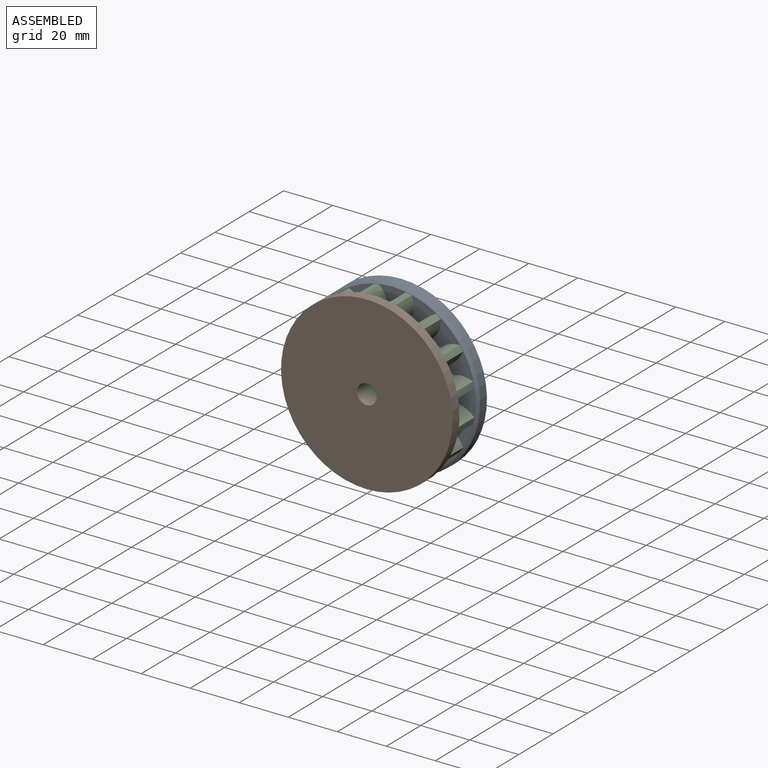
[diagram: assembled view]
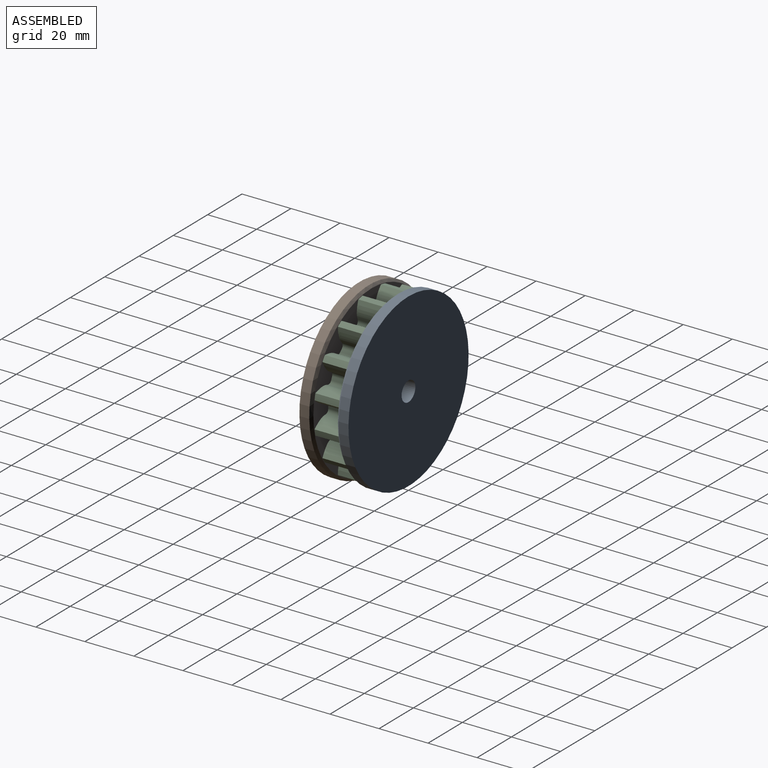
[diagram: assembled view, second angle]
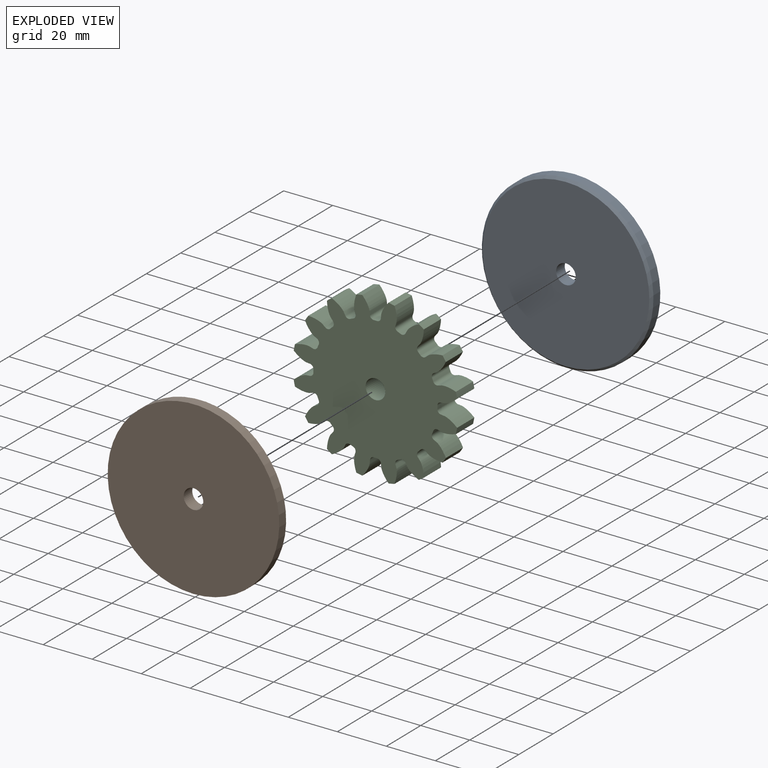
[diagram: exploded view]
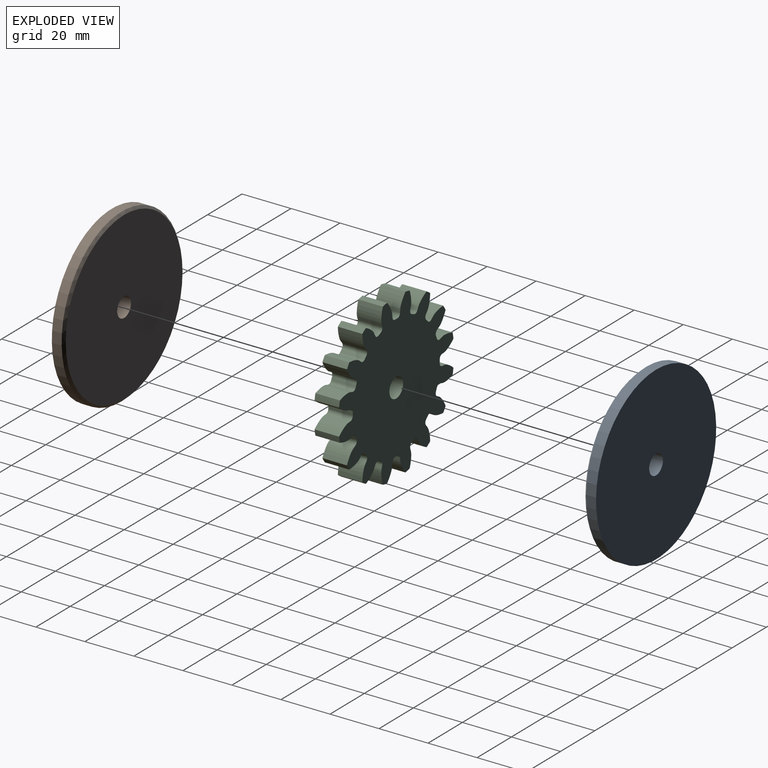
[diagram: exploded view, second angle]
ASSEMBLY  parts=3 mates=2
PART A: 5 faces, bbox 70x5x70 mm
  f0: cylinder r=4mm len=8mm, axis (0,1,0), area 125.7mm2, adj f2,f3
  f1: cylinder r=35mm len=70mm, axis (0,1,0), area 879.6mm2, adj f3,f4
  f2: plane 68x68mm, normal (0,-1,0), area 3581.4mm2, adj f0,f4
  f3: plane 70x70mm, normal (0,1,0), area 3798.2mm2, adj f0,f1
  f4: cone r=34mm half-angle=45deg, axis (0,1,0), area 306.6mm2, adj f1,f2
PART B: same geometry as A
PART C: 99 faces, bbox 66.7x10x66.7 mm
  f0: cylinder r=33.75mm len=10mm, axis (0,1,0), area 24.9mm2, adj f15,f18,f89,f96
  f1: cylinder r=33.75mm len=10mm, axis (0,1,0), area 24.9mm2, adj f15,f18,f64,f91
  f2: cylinder r=33.75mm len=10mm, axis (0,1,0), area 24.9mm2, adj f15,f18,f86,f94
  f3: cylinder r=33.75mm len=10mm, axis (0,1,0), area 24.9mm2, adj f15,f18,f74,f81
  f4: cylinder r=33.75mm len=10mm, axis (0,1,0), area 24.9mm2, adj f15,f18,f44,f76
  f5: cylinder r=33.75mm len=10mm, axis (0,1,0), area 24.9mm2, adj f15,f18,f71,f79
  f6: cylinder r=33.75mm len=10mm, axis (0,1,0), area 24.9mm2, adj f15,f18,f66,f69
  f7: cylinder r=33.75mm len=10mm, axis (0,1,0), area 24.9mm2, adj f15,f18,f54,f61
  f8: cylinder r=33.75mm len=10mm, axis (0,1,0), area 24.9mm2, adj f15,f18,f24,f56
  f9: cylinder r=33.75mm len=10mm, axis (0,1,0), area 24.9mm2, adj f15,f18,f51,f59
  f10: cylinder r=33.75mm len=10mm, axis (0,1,0), area 24.9mm2, adj f15,f18,f46,f49
  f11: cylinder r=33.75mm len=10mm, axis (0,1,0), area 24.9mm2, adj f15,f18,f34,f41
  f12: cylinder r=33.75mm len=10mm, axis (0,1,0), area 24.9mm2, adj f15,f18,f19,f36
  f13: cylinder r=33.75mm len=10mm, axis (0,1,0), area 24.9mm2, adj f15,f18,f31,f39
  f14: cylinder r=33.75mm len=10mm, axis (0,1,0), area 24.9mm2, adj f15,f18,f26,f29
  f15: plane 66.73x66.73mm, normal (0,-1,0), area 2701.3mm2, adj f0,f1,f2,f3,f4,f5,f6,f7
  f16: cylinder r=4mm len=10mm, axis (0,1,0), area 251.3mm2, adj f15,f18
  f17: cylinder r=33.75mm len=10mm, axis (0,1,0), area 24.9mm2, adj f15,f18,f21,f84
  f18: plane 66.73x66.73mm, normal (0,1,0), area 2701.3mm2, adj f0,f1,f2,f3,f4,f5,f6,f7
  f19: extruded ~10x6.62mm, area 75.2mm2, adj f12,f15,f18,f22
  f20: cylinder r=25.31mm len=10mm, axis (0,1,0), area 13.2mm2, adj f15,f18,f22,f23
  f21: extruded ~10x6.62mm, area 75.2mm2, adj f15,f17,f18,f23
  f22: cylinder r=1.53mm len=10mm, axis (0,1,0), area 23.1mm2, adj f15,f18,f19,f20
  f23: cylinder r=1.53mm len=10mm, axis (0,1,0), area 23.1mm2, adj f15,f18,f20,f21
  f24: extruded ~10x6.62mm, area 75.2mm2, adj f8,f15,f18,f27
  f25: cylinder r=25.31mm len=10mm, axis (0,1,0), area 13.2mm2, adj f15,f18,f27,f28
  f26: extruded ~10x6.62mm, area 75.2mm2, adj f14,f15,f18,f28
  f27: cylinder r=1.53mm len=10mm, axis (0,1,0), area 23.1mm2, adj f15,f18,f24,f25
  f28: cylinder r=1.53mm len=10mm, axis (0,1,0), area 23.1mm2, adj f15,f18,f25,f26
  f29: extruded ~10x7.31mm, area 75.2mm2, adj f14,f15,f18,f32
  f30: cylinder r=25.31mm len=10mm, axis (0,1,0), area 13.2mm2, adj f15,f18,f32,f33
  f31: extruded ~10x5.43mm, area 75.2mm2, adj f13,f15,f18,f33
  f32: cylinder r=1.53mm len=10mm, axis (0,1,0), area 23.1mm2, adj f15,f18,f29,f30
  f33: cylinder r=1.53mm len=10mm, axis (0,1,0), area 23.1mm2, adj f15,f18,f30,f31
  f34: extruded ~10x5.43mm, area 75.2mm2, adj f11,f15,f18,f37
  f35: cylinder r=25.31mm len=10mm, axis (0,1,0), area 13.2mm2, adj f15,f18,f37,f38
  f36: extruded ~10x7.31mm, area 75.2mm2, adj f12,f15,f18,f38
  f37: cylinder r=1.53mm len=10mm, axis (0,1,0), area 23.1mm2, adj f15,f18,f34,f35
  f38: cylinder r=1.53mm len=10mm, axis (0,1,0), area 23.1mm2, adj f15,f18,f35,f36
  f39: extruded ~10x6.89mm, area 75.2mm2, adj f13,f15,f18,f42
  f40: cylinder r=25.31mm len=10mm, axis (0,1,0), area 13.2mm2, adj f15,f18,f42,f43
  f41: extruded ~10x6.89mm, area 75.2mm2, adj f11,f15,f18,f43
  f42: cylinder r=1.53mm len=10mm, axis (0,1,0), area 23.1mm2, adj f15,f18,f39,f40
  f43: cylinder r=1.53mm len=10mm, axis (0,1,0), area 23.1mm2, adj f15,f18,f40,f41
  f44: extruded ~10x6.62mm, area 75.2mm2, adj f4,f15,f18,f47
  f45: cylinder r=25.31mm len=10mm, axis (0,1,0), area 13.2mm2, adj f15,f18,f47,f48
  f46: extruded ~10x6.62mm, area 75.2mm2, adj f10,f15,f18,f48
  f47: cylinder r=1.53mm len=10mm, axis (0,1,0), area 23.1mm2, adj f15,f18,f44,f45
  f48: cylinder r=1.53mm len=10mm, axis (0,1,0), area 23.1mm2, adj f15,f18,f45,f46
  f49: extruded ~10x7.31mm, area 75.2mm2, adj f10,f15,f18,f52
  f50: cylinder r=25.31mm len=10mm, axis (0,1,0), area 13.2mm2, adj f15,f18,f52,f53
  f51: extruded ~10x5.43mm, area 75.2mm2, adj f9,f15,f18,f53
  f52: cylinder r=1.53mm len=10mm, axis (0,1,0), area 23.1mm2, adj f15,f18,f49,f50
  f53: cylinder r=1.53mm len=10mm, axis (0,1,0), area 23.1mm2, adj f15,f18,f50,f51
  f54: extruded ~10x5.43mm, area 75.2mm2, adj f7,f15,f18,f57
  f55: cylinder r=25.31mm len=10mm, axis (0,1,0), area 13.2mm2, adj f15,f18,f57,f58
  f56: extruded ~10x7.31mm, area 75.2mm2, adj f8,f15,f18,f58
  f57: cylinder r=1.53mm len=10mm, axis (0,1,0), area 23.1mm2, adj f15,f18,f54,f55
  f58: cylinder r=1.53mm len=10mm, axis (0,1,0), area 23.1mm2, adj f15,f18,f55,f56
  f59: extruded ~10x6.89mm, area 75.2mm2, adj f9,f15,f18,f62
  f60: cylinder r=25.31mm len=10mm, axis (0,1,0), area 13.2mm2, adj f15,f18,f62,f63
  f61: extruded ~10x6.89mm, area 75.2mm2, adj f7,f15,f18,f63
  f62: cylinder r=1.53mm len=10mm, axis (0,1,0), area 23.1mm2, adj f15,f18,f59,f60
  f63: cylinder r=1.53mm len=10mm, axis (0,1,0), area 23.1mm2, adj f15,f18,f60,f61
  f64: extruded ~10x6.62mm, area 75.2mm2, adj f1,f15,f18,f67
  f65: cylinder r=25.31mm len=10mm, axis (0,1,0), area 13.2mm2, adj f15,f18,f67,f68
  f66: extruded ~10x6.62mm, area 75.2mm2, adj f6,f15,f18,f68
  f67: cylinder r=1.53mm len=10mm, axis (0,1,0), area 23.1mm2, adj f15,f18,f64,f65
  f68: cylinder r=1.53mm len=10mm, axis (0,1,0), area 23.1mm2, adj f15,f18,f65,f66
  f69: extruded ~10x7.31mm, area 75.2mm2, adj f6,f15,f18,f72
  f70: cylinder r=25.31mm len=10mm, axis (0,1,0), area 13.2mm2, adj f15,f18,f72,f73
  f71: extruded ~10x5.43mm, area 75.2mm2, adj f5,f15,f18,f73
  f72: cylinder r=1.53mm len=10mm, axis (0,1,0), area 23.1mm2, adj f15,f18,f69,f70
  f73: cylinder r=1.53mm len=10mm, axis (0,1,0), area 23.1mm2, adj f15,f18,f70,f71
  f74: extruded ~10x5.43mm, area 75.2mm2, adj f3,f15,f18,f77
  f75: cylinder r=25.31mm len=10mm, axis (0,1,0), area 13.2mm2, adj f15,f18,f77,f78
  f76: extruded ~10x7.31mm, area 75.2mm2, adj f4,f15,f18,f78
  f77: cylinder r=1.53mm len=10mm, axis (0,1,0), area 23.1mm2, adj f15,f18,f74,f75
  f78: cylinder r=1.53mm len=10mm, axis (0,1,0), area 23.1mm2, adj f15,f18,f75,f76
  f79: extruded ~10x6.89mm, area 75.2mm2, adj f5,f15,f18,f82
  f80: cylinder r=25.31mm len=10mm, axis (0,1,0), area 13.2mm2, adj f15,f18,f82,f83
  f81: extruded ~10x6.89mm, area 75.2mm2, adj f3,f15,f18,f83
  f82: cylinder r=1.53mm len=10mm, axis (0,1,0), area 23.1mm2, adj f15,f18,f79,f80
  f83: cylinder r=1.53mm len=10mm, axis (0,1,0), area 23.1mm2, adj f15,f18,f80,f81
  f84: extruded ~10x7.31mm, area 75.2mm2, adj f15,f17,f18,f87
  f85: cylinder r=25.31mm len=10mm, axis (0,1,0), area 13.2mm2, adj f15,f18,f87,f88
  f86: extruded ~10x5.43mm, area 75.2mm2, adj f2,f15,f18,f88
  f87: cylinder r=1.53mm len=10mm, axis (0,1,0), area 23.1mm2, adj f15,f18,f84,f85
  f88: cylinder r=1.53mm len=10mm, axis (0,1,0), area 23.1mm2, adj f15,f18,f85,f86
  f89: extruded ~10x5.43mm, area 75.2mm2, adj f0,f15,f18,f92
  f90: cylinder r=25.31mm len=10mm, axis (0,1,0), area 13.2mm2, adj f15,f18,f92,f93
  f91: extruded ~10x7.31mm, area 75.2mm2, adj f1,f15,f18,f93
  f92: cylinder r=1.53mm len=10mm, axis (0,1,0), area 23.1mm2, adj f15,f18,f89,f90
  f93: cylinder r=1.53mm len=10mm, axis (0,1,0), area 23.1mm2, adj f15,f18,f90,f91
  f94: extruded ~10x6.89mm, area 75.2mm2, adj f2,f15,f18,f97
  f95: cylinder r=25.31mm len=10mm, axis (0,1,0), area 13.2mm2, adj f15,f18,f97,f98
  f96: extruded ~10x6.89mm, area 75.2mm2, adj f0,f15,f18,f98
  f97: cylinder r=1.53mm len=10mm, axis (0,1,0), area 23.1mm2, adj f15,f18,f94,f95
  f98: cylinder r=1.53mm len=10mm, axis (0,1,0), area 23.1mm2, adj f15,f18,f95,f96
PLACE A rot(axis=(0,1,0),180deg) t=(0,0,0)mm
PLACE B rot(axis=(0,0,1),180deg) t=(0,-20,0)mm
PLACE C t=(0,-5,0)mm
MATE fastened C.f0 <-> B.f1  axis (0,-1,0) through (0,-15,0)mm
MATE fastened A.f0 <-> C.f0  axis (0,-1,0) through (0,-5,0)mm
